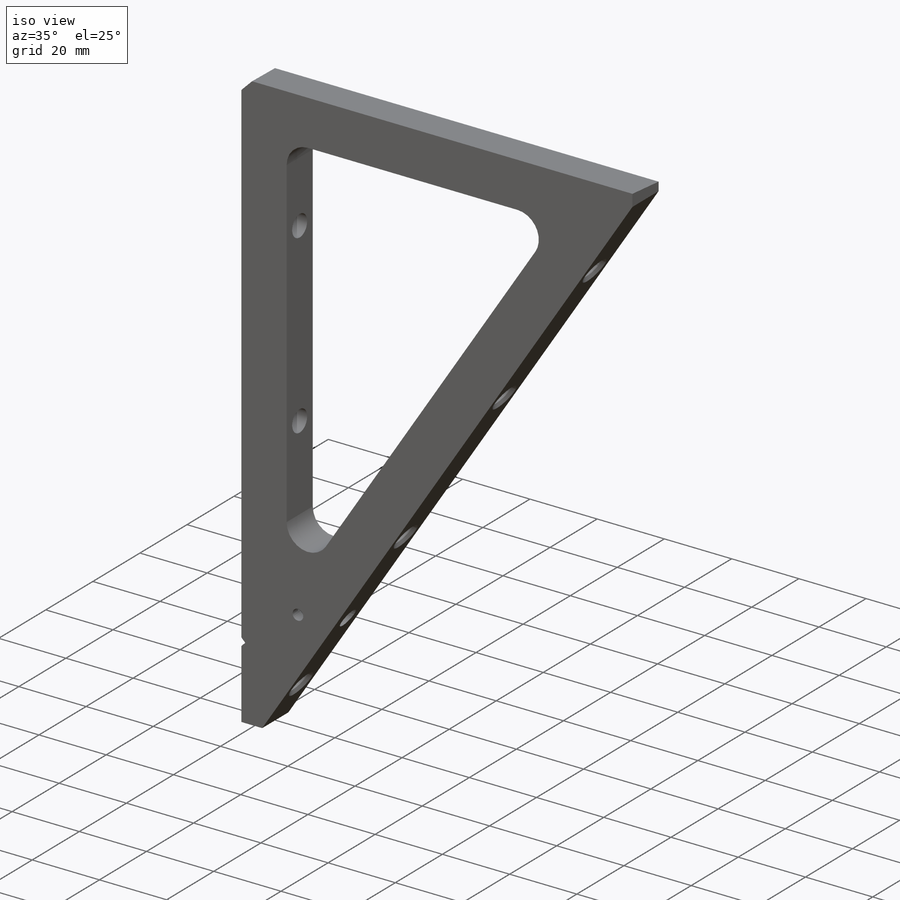
[diagram: iso view]
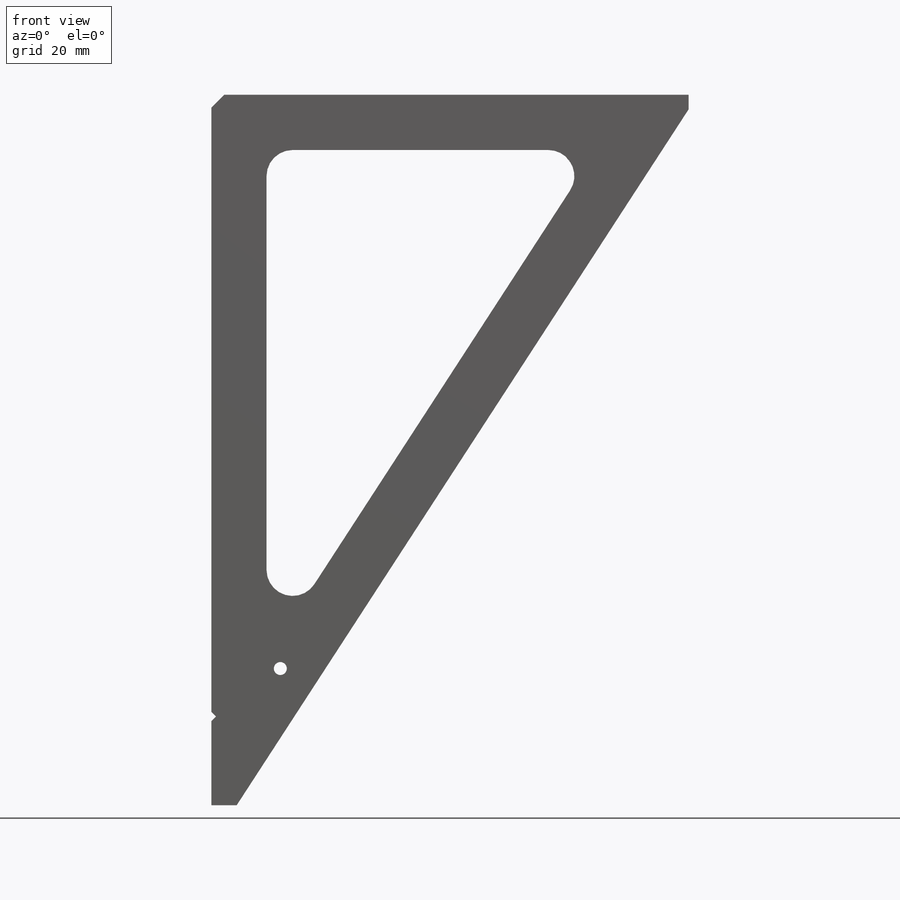
[diagram: front view]
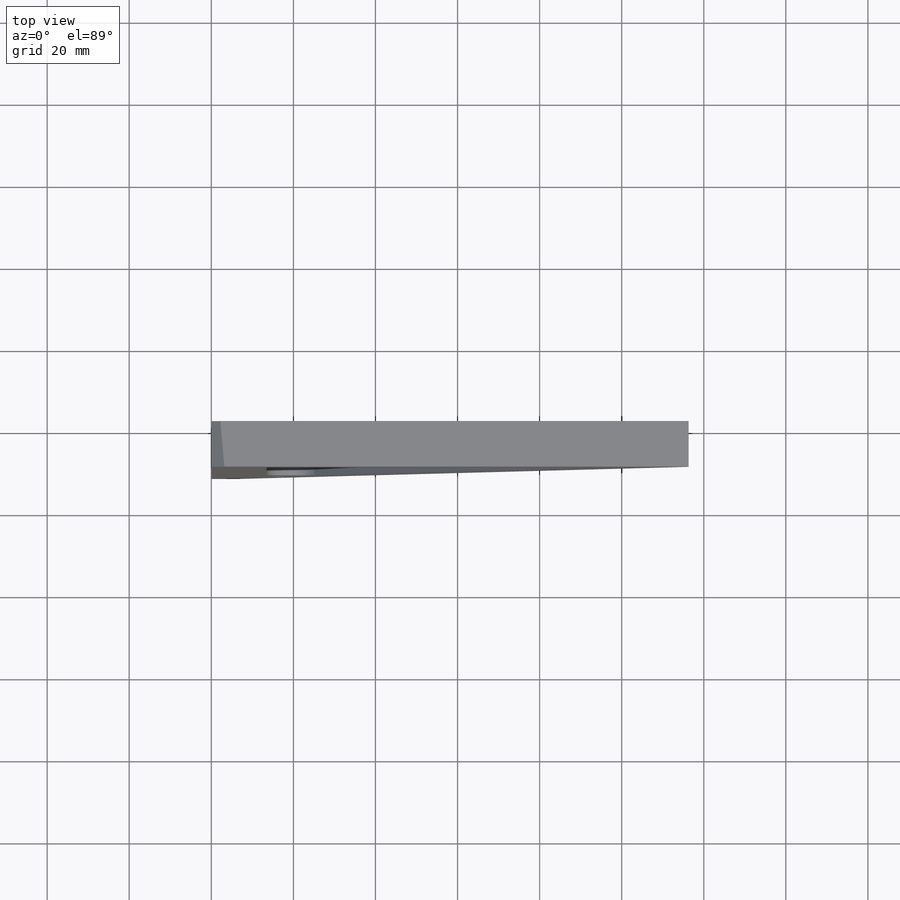
[diagram: top view]
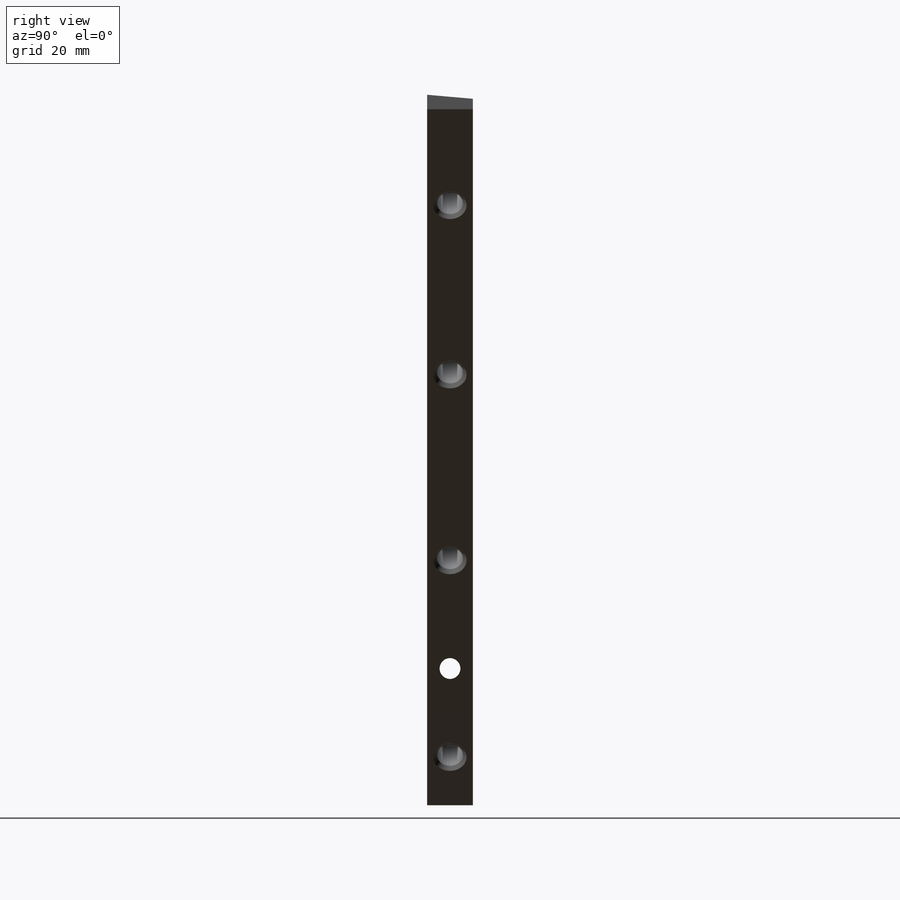
[diagram: right view]
SOLIDWORKS PART (.sldprt)
format: sldprt  version: not decoded by parser v0  size: 428,032 bytes
history: native  units: mm
features: sketch x11, cut_extrude x4, hole x3, material x1, extrude x1, chamfer x1 + 2 further entries (+10 scaffold rows collapsed)
feature tree (33):
  scaffold x10  (default folders/planes/origin — collapsed)
  material  "6061-T6 Al"
  "Origin"  ID=392984584
  "ID"
  sketch  "Sketch1"  dims[c1.D4=6.35mm c1.D1=~3.63393mm c2.D1=85.0deg c2.D2=38.1mm c2.D3=12.7mm c3.D2=~192.238702mm c3.D3=~124.841273mm c3.D4=~229.218371mm c4.D3=~124.841273mm c4.D2=~229.218371mm c5.D2=57.0deg c5.D3=~13.452154mm c5.D5=13.462mm c5.D1=~182.640542mm c6.D3=0.0mm c6.D5=~19.802154mm c6.D6=~19.802154mm c6.D7=~82.11899mm c6.D1=13.462mm]
  extrude  "Boss-Extrude1"  Depth=11.1252mm
  hole  "1/4-20 Tapped Hole1"  Diameter=5.1054mm Depth=30.6832mm
  sketch  "Sketch4"  dims[c1.AlignGroup5=0.0 c1.D1=0.0mm c1.D2=~38.205902mm c1.D3=~90.675166mm c1.D4=~139.805902mm c2.D1=0.0mm c2.D2=42.8498mm c2.D3=~91.980536mm c2.D4=144.4498mm c3.D1=0.0mm c3.D2=~42.834639mm c3.D3=~91.965376mm c3.D4=~144.434639mm]
  sketch  "Sketch3"  dims[hole-wizard template sketch: 27 standard entries collapsed; hole parameters kept: c8.Tap Drill Depth=30.6832mm c8.Thread Major Dia.=6.35mm c8.Thread Depth=15.24mm c8.Near C'Sink Dia.=8.128mm c8.D6=~4.399409mm c8.Near C'Sink Angle=90.0deg c8.D7=~14.816244mm c8.Drill Angle=118.0deg]
  hole  "1/4-20 Tapped Hole2"  Diameter=5.1054mm Depth=17.9832mm
  sketch  "Sketch7"  dims[c1.AlignGroup6=0.0 c1.D1=0.0mm c1.D2=25.4mm c1.D3=82.55mm c1.D4=136.525mm c1.D5=185.7248mm c2.D1=0.0mm c2.D2=~25.387285mm c2.D3=~82.537285mm c2.D4=~136.512285mm c2.D5=~185.712085mm]
  sketch  "Sketch6"  dims[hole-wizard template sketch: 27 standard entries collapsed; hole parameters kept: c8.Tap Drill Depth=17.9832mm c8.Thread Major Dia.=6.35mm c8.Thread Depth=15.24mm c8.Near C'Sink Dia.=8.128mm c8.D6=~4.399409mm c8.Near C'Sink Angle=90.0deg c8.D7=~14.816244mm c8.Drill Angle=118.0deg]
  sketch  "Sketch8"  dims[D1=9.525mm]
  cut_extrude  "Cut-Extrude1"  [1 undecoded]
  chamfer  "Chamfer3"  Distance=3.175mm Angle=45deg
  sketch  "Sketch9"  dims[c1.D1=11.1252mm c2.D1=~8.120945deg c3.D1=11.1252mm c4.D1=5.0deg]
  cut_extrude  "Cut-Extrude2"  [1 undecoded]
  sketch  "Sketch10"  dims[D1=2.286mm]
  cut_extrude  "Cut-Extrude3"  [1 undecoded]
  hole  "1/8 (0.125) Diameter Hole1"  Diameter=3.175mm Depth=11.1252mm
  sketch  "Sketch12"  dims[D1=1.5748mm D2=1.5748mm]
  sketch  "Sketch13"  dims[hole-wizard template sketch: 60 standard entries collapsed; hole parameters kept: c18.Thru Hole Depth=11.1252mm]
  sketch  "Sketch14"  dims[c1.D1=~2.982884mm c2.D1=45.0deg c2.D2=~3.95455mm c3.D2=45.0deg c3.D3=2.286mm c3.D4=21.59mm]
  cut_extrude  "Cut-Extrude4"  [1 undecoded]
decode coverage: 16 of 20 modeling features carry decoded parameters; 2 rows unclassified (native names shown)
note: ~ marks probable driven/reference dimensions
note: 4 parameter values undecoded
summary: no parameter record found for 4 features
note: suppression state not decoded; provenance and decode notes live in map.json
